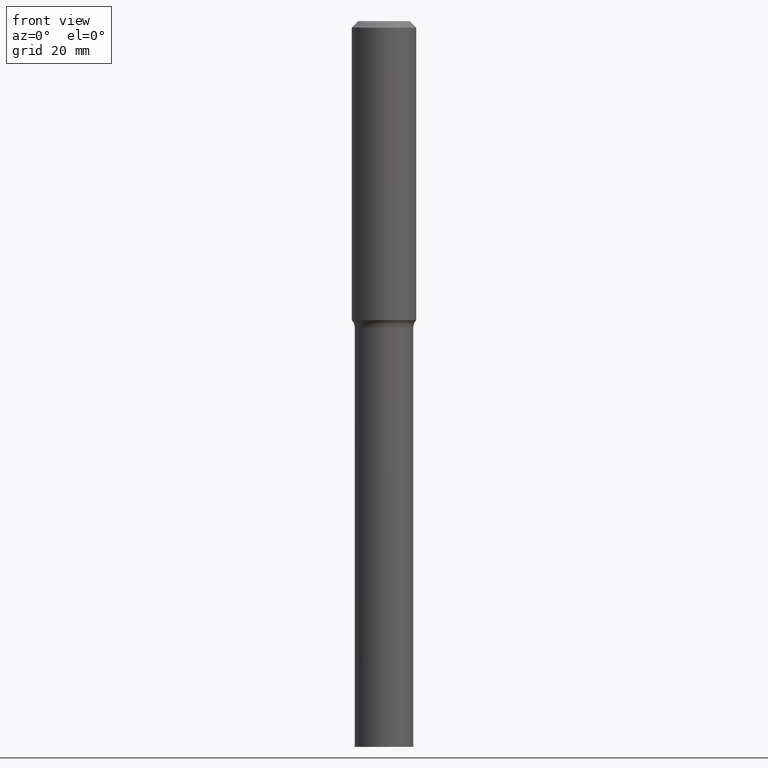
[diagram: clean part render]
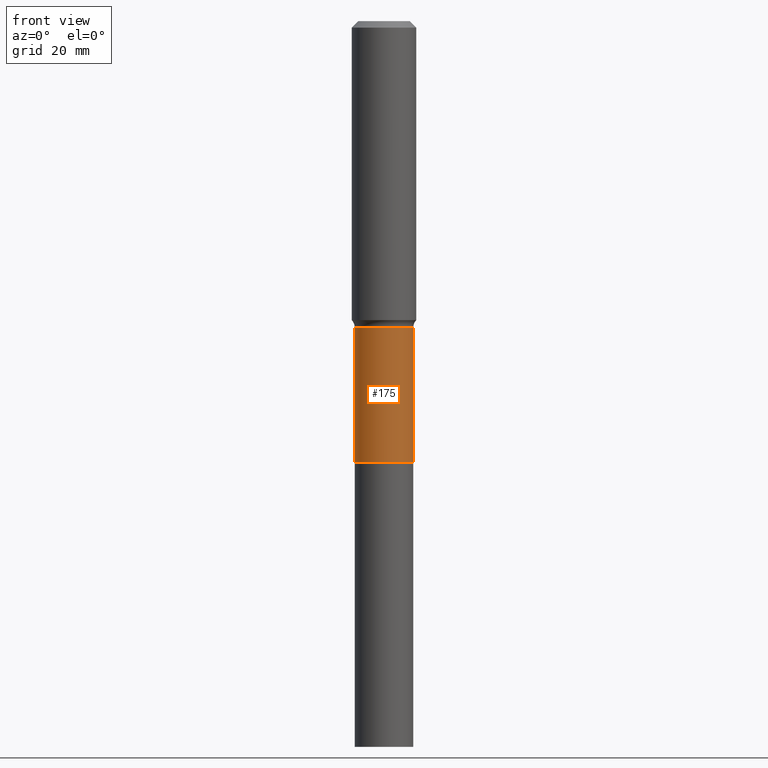
[diagram: same view with one face highlighted and labeled with its STEP entity id]
A machine part, front view. The second image highlights one B-rep face of the part: STEP entity #175.
In plain terms, the highlighted cylindrical surface (edge-blend (fillet) strip) has radius 5.4496 mm, axis along (-0, 0, 1).
Its self-contained STEP definition (entity closure, byte-faithful):
#2 = DIRECTION ( 'NONE',  ( 1.000000000000000000, -6.982962677686264344E-15, 0.000000000000000000 ) ) ;
#25 = EDGE_CURVE ( 'NONE', #500, #95, #401, .T. ) ;
#34 = CIRCLE ( 'NONE', #339, 0.2145499999999999907 ) ;
#38 = CARTESIAN_POINT ( 'NONE',  ( 7.895196040768714687E-29, -1.127224750245509741E-14, -3.228500000000000814 ) ) ;
#64 = EDGE_CURVE ( 'NONE', #146, #497, #190, .T. ) ;
#69 = CIRCLE ( 'NONE', #281, 0.2145499999999998797 ) ;
#87 = CARTESIAN_POINT ( 'NONE',  ( -0.2145499999999998797, -8.029096373836263825E-15, -2.244000000000000217 ) ) ;
#91 = EDGE_LOOP ( 'NONE', ( #305, #302, #244, #229 ) ) ;
#95 = VERTEX_POINT ( 'NONE', #87 ) ;
#101 = DIRECTION ( 'NONE',  ( -2.445468806185136597E-29, 3.491481338843145583E-15, 1.000000000000000000 ) ) ;
#114 = EDGE_CURVE ( 'NONE', #500, #146, #34, .T. ) ;
#117 = CYLINDRICAL_SURFACE ( 'NONE', #380, 0.2145499999999999352 ) ;
#146 = VERTEX_POINT ( 'NONE', #518 ) ;
#171 = CARTESIAN_POINT ( 'NONE',  ( 0.000000000000000000, 0.000000000000000000, 0.000000000000000000 ) ) ;
#175 = ADVANCED_FACE ( 'NONE', ( #370 ), #117, .T. ) ;
#190 = LINE ( 'NONE', #354, #414 ) ;
#193 = CARTESIAN_POINT ( 'NONE',  ( -0.2145499999999999630, -8.029096373836262248E-15, -3.228500000000000814 ) ) ;
#199 = DIRECTION ( 'NONE',  ( -2.445468806185136877E-29, 3.491481338843145188E-15, 1.000000000000000000 ) ) ;
#207 = DIRECTION ( 'NONE',  ( 1.000000000000000000, -6.982962677686266711E-15, 4.876176775795936353E-29 ) ) ;
#228 = CARTESIAN_POINT ( 'NONE',  ( 5.487632001079447088E-29, -7.834884124364020406E-15, -2.244000000000000217 ) ) ;
#229 = ORIENTED_EDGE ( 'NONE', *, *, #357, .F. ) ;
#244 = ORIENTED_EDGE ( 'NONE', *, *, #64, .T. ) ;
#249 = DIRECTION ( 'NONE',  ( -2.445468806185136597E-29, 3.491481338843145583E-15, 1.000000000000000000 ) ) ;
#281 = AXIS2_PLACEMENT_3D ( 'NONE', #228, #101, #386 ) ;
#295 = DIRECTION ( 'NONE',  ( -2.445468806185136597E-29, 3.491481338843145583E-15, 1.000000000000000000 ) ) ;
#302 = ORIENTED_EDGE ( 'NONE', *, *, #114, .T. ) ;
#305 = ORIENTED_EDGE ( 'NONE', *, *, #25, .F. ) ;
#339 = AXIS2_PLACEMENT_3D ( 'NONE', #38, #249, #2 ) ;
#354 = CARTESIAN_POINT ( 'NONE',  ( 0.2145499999999999352, -1.498194642497588005E-15, 1.046183727247017794E-29 ) ) ;
#357 = EDGE_CURVE ( 'NONE', #95, #497, #69, .T. ) ;
#370 = FACE_OUTER_BOUND ( 'NONE', #91, .T. ) ;
#380 = AXIS2_PLACEMENT_3D ( 'NONE', #171, #295, #207 ) ;
#386 = DIRECTION ( 'NONE',  ( 1.000000000000000000, -6.982962677686263555E-15, 0.000000000000000000 ) ) ;
#397 = CARTESIAN_POINT ( 'NONE',  ( -0.2145499999999999352, 1.524469439573294488E-15, -1.055357523614189686E-29 ) ) ;
#401 = LINE ( 'NONE', #397, #483 ) ;
#414 = VECTOR ( 'NONE', #199, 39.37007874015748143 ) ;
#474 = CARTESIAN_POINT ( 'NONE',  ( 0.2145499999999998797, -9.333078766861606044E-15, -2.244000000000000217 ) ) ;
#483 = VECTOR ( 'NONE', #514, 39.37007874015748143 ) ;
#497 = VERTEX_POINT ( 'NONE', #474 ) ;
#500 = VERTEX_POINT ( 'NONE', #193 ) ;
#514 = DIRECTION ( 'NONE',  ( -2.445468806185136877E-29, 3.491481338843145188E-15, 1.000000000000000000 ) ) ;
#518 = CARTESIAN_POINT ( 'NONE',  ( 0.2145499999999999907, -1.277044214495268620E-14, -3.228500000000000814 ) ) ;